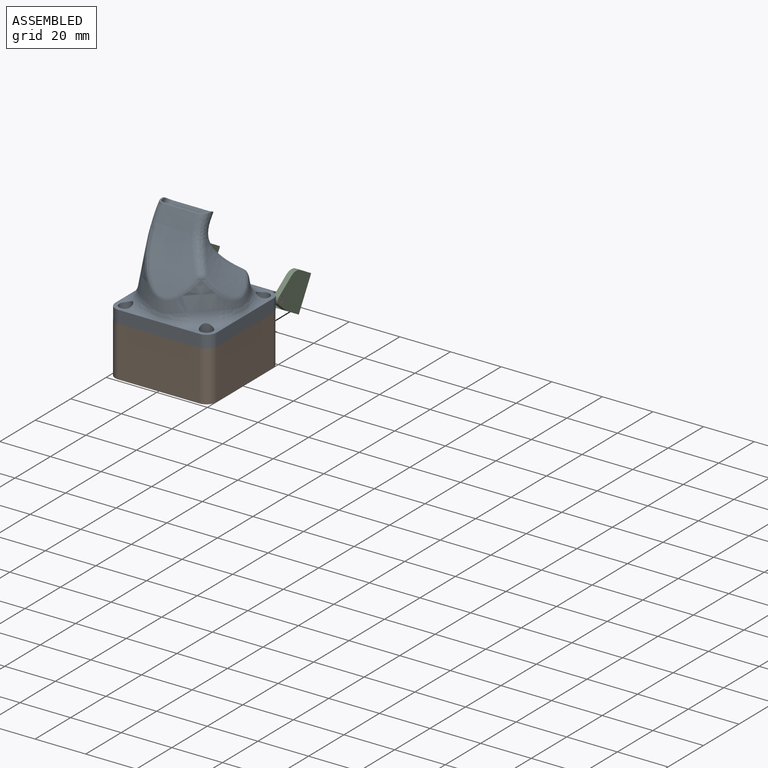
[diagram: assembled view]
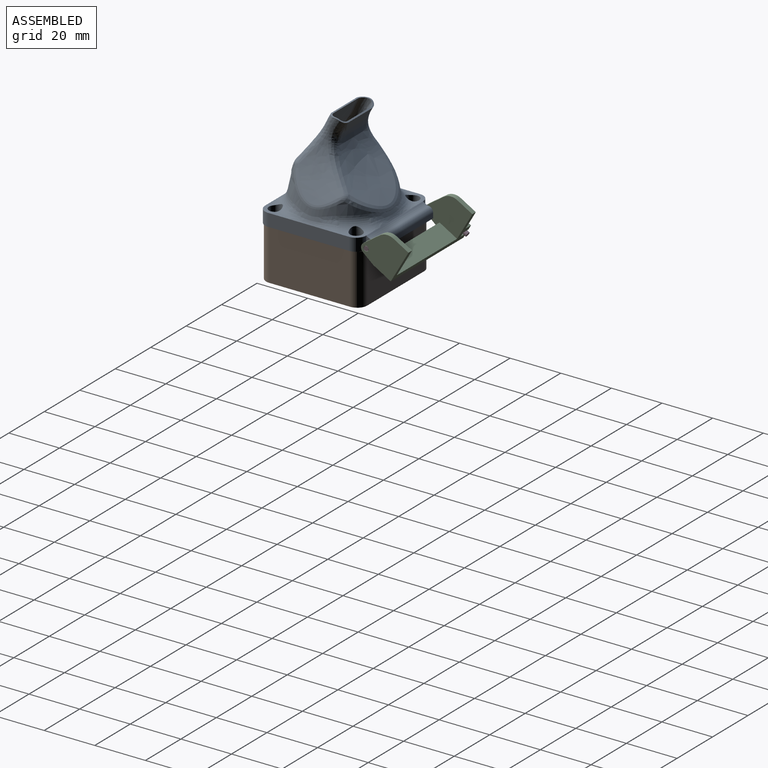
[diagram: assembled view, second angle]
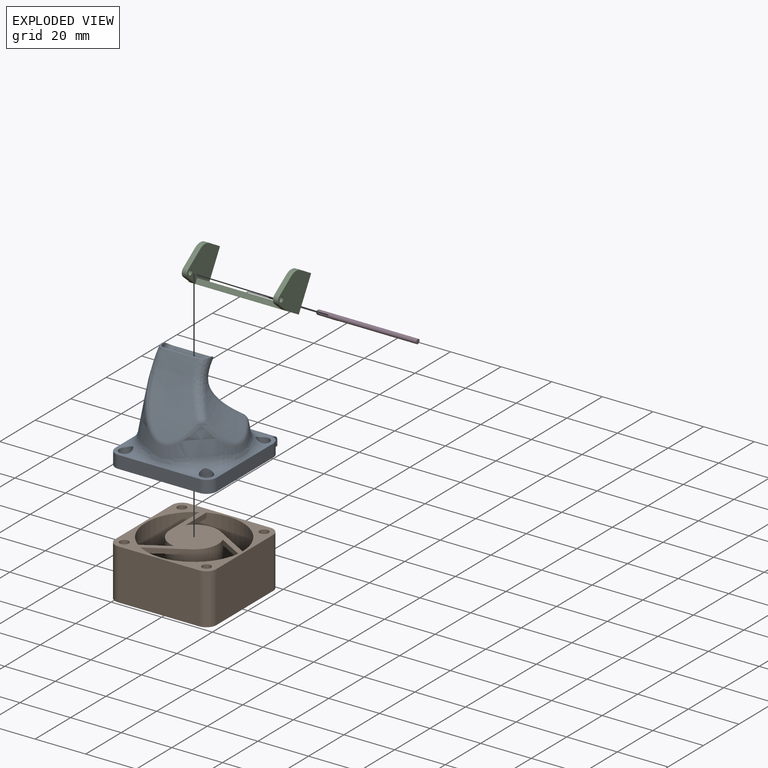
[diagram: exploded view]
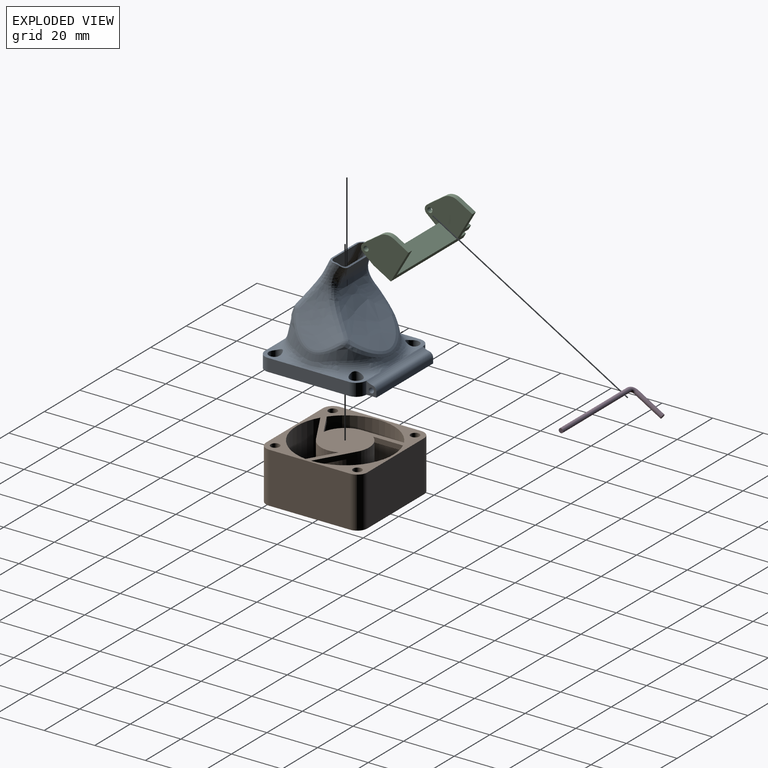
[diagram: exploded view, second angle]
ASSEMBLY  parts=4 mates=3
PART A: 74 faces, bbox 51.1x51.1x41 mm
  f0: plane 8.06x8.06mm, normal (0,0,1), area 16.9mm2, adj f1,f70,f71,f72,f73
  f1: cylinder r=4mm len=5mm, axis (0,0,-1), area 31.4mm2, adj f0,f2,f69,f70
  f2: plane 5x4mm, normal (1,0,0), area 12.9mm2, adj f1,f3,f67,f68,f69,f73
  f3: cylinder r=2mm len=32mm, axis (-1,0,0), area 90.3mm2, adj f2,f4,f67,f73
  f4: plane 5x4mm, normal (-1,0,0), area 12.9mm2, adj f3,f5,f67,f68,f69,f73
  f5: cylinder r=4mm len=5mm, axis (0,0,-1), area 31.4mm2, adj f4,f6,f66,f69
  f6: plane 8.06x8.06mm, normal (0,0,1), area 16.9mm2, adj f5,f7,f8,f66,f73
  f7: cylinder r=2.5mm len=5.59mm, axis (0,0,1), area 81.2mm2, adj f6,f8,f69
  f8: torus R=23.3mm, axis (0,0,1), area 56.4mm2, adj f6,f7,f9,f21,f65
  f9: bspline ~24.77x4.47mm, area 94.2mm2, adj f8,f10,f21,f66
  f10: torus R=23.3mm, axis (0,0,1), area 56.4mm2, adj f9,f11,f19,f20,f21
  f11: bspline ~24.77x4.47mm, area 94.2mm2, adj f10,f12,f17,f21
  f12: plane 32.46x5.46mm, normal (0,-1,0), area 160mm2, adj f11,f13,f14,f16,f20,f69
  f13: cylinder r=4mm len=5mm, axis (0,0,-1), area 31.4mm2, adj f12,f20,f66,f69
  f14: plane 8.06x8.06mm, normal (0,0,1), area 16.9mm2, adj f12,f15,f16,f17,f70
  f15: cylinder r=2.5mm len=6.13mm, axis (0,0,1), area 83.2mm2, adj f14,f17,f69
  f16: cylinder r=4mm len=5mm, axis (0,0,-1), area 31.4mm2, adj f12,f14,f69,f70
  f17: torus R=23.3mm, axis (0,0,1), area 56.4mm2, adj f11,f14,f15,f18,f21
  f18: bspline ~24.77x4.47mm, area 94.2mm2, adj f17,f21,f70,f72
  f19: cylinder r=2.5mm len=5.59mm, axis (0,0,1), area 81.2mm2, adj f10,f20,f69
  f20: plane 8.06x8.06mm, normal (0,0,1), area 16.9mm2, adj f10,f12,f13,f19,f66
  f21: cone r=19.1mm half-angle=10deg, axis (0,0,-1), area 665.4mm2, adj f8,f9,f10,f11,f17,f18,f22,f60
  f22: bspline ~30.97x18.22mm, area 123.5mm2, adj f21,f23,f55,f59
  f23: sphere r=3mm, area 3.3mm2, adj f22,f24,f64
  f24: bspline ~22.6x12.08mm, area 99.5mm2, adj f23,f25,f26,f52,f53,f54,f55
  f25: plane 13.37x0.83mm, normal (0,0.82,-0.57), area 13.3mm2, adj f24,f54,f55,f61
  f26: bspline ~27.83x26.74mm, area 218.2mm2, adj f24,f27,f52,f64
  f27: bspline ~21.01x14.97mm, area 92.5mm2, adj f26,f28,f29,f30,f52,f53
  f28: sphere r=3mm, area 4mm2, adj f27,f63,f64
  f29: bspline ~40x33.09mm, area 429.4mm2, adj f27,f30,f63
  f30: plane 19.28x3.26mm, normal (0,0,1), area 15.1mm2, adj f27,f29,f31,f50,f51,f53,f62,f63
  f31: bspline ~27.51x24.68mm, area 95.5mm2, adj f30,f32,f49,f50,f62
  f32: cone r=18.51mm half-angle=10deg, axis (0,0,-1), area 935.9mm2, adj f31,f33,f44,f45,f47,f48,f62
  f33: bspline ~7.63x5.74mm, area 27.8mm2, adj f32,f34,f38,f43,f54,f62
  f34: sphere r=2.4mm, area 0.2mm2, adj f33,f35,f48
  f35: bspline ~12.97x6mm, area 36.3mm2, adj f34,f36,f37,f38
  f36: offset ~32.74x23.43mm, area 0mm2, adj f35,f48
  f37: sphere r=2.4mm, area 0.6mm2, adj f35,f47,f48
  f38: offset ~33.55x27.1mm, area 617.1mm2, adj f33,f35,f39,f43,f47
  f39: bspline ~23x11.78mm, area 82.1mm2, adj f38,f40,f41,f42,f43,f53,f54
  f40: plane 0.9x0.8mm, normal (-1,0,0), area 0.4mm2, adj f39,f42,f51,f53
  f41: sphere r=2.4mm, area 2.1mm2, adj f39,f44,f47
  f42: offset ~37.87x33.98mm, area 218.6mm2, adj f39,f40,f44,f51
  f43: plane 13.37x0.83mm, normal (0,-0.82,0.57), area 13.3mm2, adj f33,f38,f39,f54
  f44: bspline ~22.46x11.66mm, area 40.2mm2, adj f32,f41,f42,f49
  f45: torus R=6.5mm, axis (0,0,1), area 242.6mm2, adj f32,f46
  f46: cylinder r=18.5mm len=37mm, axis (0,0,-1), area 453.1mm2, adj f45,f69
  f47: bspline ~29.89x17.64mm, area 97.6mm2, adj f32,f37,f38,f41
  f48: bspline ~11.81x5.23mm, area 8.1mm2, adj f32,f34,f36,f37
  f49: sphere r=2.4mm, area 2.6mm2, adj f31,f44,f51
  f50: offset ~41.2x34.29mm, area 434.5mm2, adj f30,f31,f51
  f51: bspline ~20.98x14.46mm, area 75.7mm2, adj f30,f40,f42,f49,f50,f53
  f52: plane 0.9x0.8mm, normal (1,0,0), area 0.4mm2, adj f24,f26,f27,f53
  f53: cylinder r=3mm len=1.72mm, axis (1,0,0), area 1.1mm2, adj f24,f27,f30,f39,f40,f51,f52,f54
  f54: plane 19.11x1.89mm, normal (0,0.57,0.82), area 11.9mm2, adj f24,f25,f33,f39,f43,f53,f61,f62
  f55: bspline ~40x29.36mm, area 602.4mm2, adj f22,f24,f25,f56,f61
  f56: bspline ~12.81x6.38mm, area 43.5mm2, adj f55,f57,f58,f59
  f57: bspline ~31.54x22.23mm, area 0mm2, adj f56,f60
  f58: sphere r=3mm, area 0.3mm2, adj f56,f60,f61
  f59: sphere r=3mm, area 0.9mm2, adj f22,f56,f60
  f60: bspline ~11.81x5.44mm, area 10mm2, adj f21,f57,f58,f59
  f61: bspline ~7.88x6.33mm, area 34mm2, adj f21,f25,f54,f55,f58,f62
  f62: cylinder r=3mm len=1.72mm, axis (1,0,0), area 1.1mm2, adj f21,f30,f31,f32,f33,f54,f61,f63
  f63: bspline ~27.83x25.67mm, area 119mm2, adj f21,f28,f29,f30,f62
  f64: bspline ~23.27x11.86mm, area 50.9mm2, adj f21,f23,f26,f28
  f65: bspline ~24.77x4.47mm, area 94.2mm2, adj f8,f21,f72,f73
  f66: plane 32.46x5.46mm, normal (-1,0,0), area 160mm2, adj f5,f6,f9,f13,f20,f69
  f67: plane 32x2mm, normal (0,1,0), area 64mm2, adj f2,f3,f4,f69
  f68: cylinder r=1mm len=32mm, axis (-1,0,0), area 201.1mm2, adj f2,f4
  f69: plane 44x40mm, normal (0,0,-1), area 560.5mm2, adj f1,f2,f4,f5,f7,f12,f13,f15
  f70: plane 32.46x5.46mm, normal (1,0,0), area 160mm2, adj f0,f1,f14,f16,f18,f69
  f71: cylinder r=2.5mm len=6.13mm, axis (0,0,1), area 83.2mm2, adj f0,f69,f72
  f72: torus R=23.3mm, axis (0,0,1), area 56.4mm2, adj f0,f18,f21,f65,f71
  f73: cylinder r=5mm len=32mm, axis (1,0,0), area 82mm2, adj f0,f2,f3,f4,f6,f65
PART B: 26 faces, bbox 40x40x20 mm
  f0: plane 40x40mm, normal (0,0,-1), area 758.2mm2, adj f4,f5,f6,f8,f9,f10,f11,f12
  f1: plane 40x40mm, normal (0,0,1), area 395.7mm2, adj f12,f13,f14,f15,f16,f17,f18,f19
  f2: plane 14.4x10.54mm, normal (0,0,1), area 26.3mm2, adj f4,f10,f11,f12
  f3: plane 16.26x8.31mm, normal (0,0,1), area 26.3mm2, adj f4,f8,f9,f12
  f4: cylinder r=9.5mm len=19.5mm, axis (0,0,-1), area 1126.3mm2, adj f0,f2,f3,f5,f6,f7,f8,f9
  f5: plane 16.63x2mm, normal (0,-1,0), area 33.3mm2, adj f0,f4,f7,f12
  f6: plane 11.79x2mm, normal (0,1,0), area 23.6mm2, adj f0,f4,f7,f12
  f7: plane 17.62x2mm, normal (0,0,1), area 26.3mm2, adj f4,f5,f6,f12
  f8: plane 10.21x5.89mm, normal (0.87,-0.5,0), area 23.6mm2, adj f0,f3,f4,f12
  f9: plane 14.4x8.31mm, normal (-0.87,0.5,0), area 33.3mm2, adj f0,f3,f4,f12
  f10: plane 14.4x8.31mm, normal (0.87,0.5,0), area 33.3mm2, adj f0,f2,f4,f12
  f11: plane 10.21x5.89mm, normal (-0.87,-0.5,0), area 23.6mm2, adj f0,f2,f4,f12
  f12: cylinder r=19.15mm len=38.3mm, axis (0,0,-1), area 2393.1mm2, adj f0,f1,f2,f3,f5,f6,f7,f8
  f13: plane 32x20mm, normal (0,1,0), area 640mm2, adj f0,f1,f17,f20
  f14: plane 32x20mm, normal (-1,0,0), area 640mm2, adj f0,f1,f17,f18
  f15: plane 32x20mm, normal (0,-1,0), area 640mm2, adj f0,f1,f18,f19
  f16: plane 32x20mm, normal (1,0,0), area 640mm2, adj f0,f1,f19,f20
  f17: cylinder r=4mm len=20mm, axis (0,0,1), area 125.7mm2, adj f0,f1,f13,f14
  f18: cylinder r=4mm len=20mm, axis (0,0,-1), area 125.7mm2, adj f0,f1,f14,f15
  f19: cylinder r=4mm len=20mm, axis (0,0,1), area 125.7mm2, adj f0,f1,f15,f16
  f20: cylinder r=4mm len=20mm, axis (0,0,-1), area 125.7mm2, adj f0,f1,f13,f16
  f21: plane 19x19mm, normal (0,0,1), area 283.5mm2, adj f4
  f22: cylinder r=1.75mm len=20mm, axis (0,0,-1), area 219.9mm2, adj f0,f1
  f23: cylinder r=1.75mm len=20mm, axis (0,0,-1), area 219.9mm2, adj f0,f1
  f24: cylinder r=1.75mm len=20mm, axis (0,0,-1), area 219.9mm2, adj f0,f1
  f25: cylinder r=1.75mm len=20mm, axis (0,0,-1), area 219.9mm2, adj f0,f1
PART C: 27 faces, bbox 41x15x14 mm
  f0: plane 15x14mm, normal (-1,0,0), area 157.5mm2, adj f1,f2,f5,f6,f7,f8,f9,f10
  f1: plane 41x14mm, normal (0,-1,0), area 136mm2, adj f0,f2,f3,f4,f5,f12,f13,f14
  f2: plane 34x8mm, normal (0,0,1), area 272mm2, adj f0,f1,f7,f12
  f3: plane 41x8mm, normal (0,0,-1), area 322mm2, adj f1,f4,f7,f8,f13,f16,f24,f25
  f4: plane 15x14mm, normal (1,0,0), area 145.5mm2, adj f1,f3,f5,f6,f8,f9,f10,f11
  f5: plane 6.84x2mm, normal (0,0,1), area 13.7mm2, adj f0,f1,f4,f11
  f6: cylinder r=1mm len=2mm, axis (1,0,0), area 12.6mm2, adj f0,f4
  f7: plane 34x2mm, normal (0,1,0), area 68mm2, adj f0,f2,f3,f12
  f8: plane 5.38x2mm, normal (0,0.19,-0.98), area 11mm2, adj f0,f3,f4,f10
  f9: plane 7.29x3.45mm, normal (0,0.9,0.43), area 16.1mm2, adj f0,f4,f10,f11
  f10: cylinder r=2mm len=2.82mm, axis (1,0,0), area 7.3mm2, adj f0,f4,f8,f9
  f11: cylinder r=5mm len=4.52mm, axis (1,0,0), area 11.3mm2, adj f0,f4,f5,f9
  f12: plane 15x14mm, normal (1,0,0), area 157.5mm2, adj f1,f2,f7,f14,f15,f16,f17,f18
  f13: plane 15x14mm, normal (-1,0,0), area 173.5mm2, adj f1,f3,f14,f15,f16,f17,f18,f19
  f14: plane 6.84x2mm, normal (0,0,1), area 13.7mm2, adj f1,f12,f13,f19
  f15: cylinder r=1mm len=2mm, axis (-1,0,0), area 12.6mm2, adj f12,f13
  f16: plane 5.38x2mm, normal (0,0.19,-0.98), area 11mm2, adj f3,f12,f13,f18
  f17: plane 7.29x3.45mm, normal (0,0.9,0.43), area 16.1mm2, adj f12,f13,f18,f19
  f18: cylinder r=2mm len=2.82mm, axis (-1,0,0), area 7.3mm2, adj f12,f13,f16,f17
  f19: cylinder r=5mm len=4.52mm, axis (-1,0,0), area 11.3mm2, adj f12,f13,f14,f17
  f20: plane 7x3mm, normal (0,0,1), area 18mm2, adj f1,f4,f22,f26
  f21: plane 7x3mm, normal (0,0,-1), area 18mm2, adj f1,f4,f22,f26
  f22: plane 3.13x2mm, normal (1,0,0), area 6.3mm2, adj f1,f20,f21,f26
  f23: plane 7x3mm, normal (0,0,1), area 18mm2, adj f1,f4,f24,f25
  f24: plane 3.13x2mm, normal (1,0,0), area 6.3mm2, adj f1,f3,f23,f25
  f25: cylinder r=4mm len=3.87mm, axis (0,0,1), area 10.5mm2, adj f3,f4,f23,f24
  f26: cylinder r=4mm len=3.87mm, axis (0,0,1), area 10.5mm2, adj f4,f20,f21,f22
PART D: 5 faces, bbox 15.1x41.1x1.8 mm
  f0: cylinder r=0.9mm len=38mm, axis (0,1,0), area 214.9mm2, adj f1,f3
  f1: plane 1.8x1.8mm, normal (0,-1,0), area 2.5mm2, adj f0
  f2: plane 1.8x1.8mm, normal (1,0,0), area 2.5mm2, adj f4
  f3: torus R=2mm, axis (0,0,-1), area 17.8mm2, adj f0,f4
  f4: cylinder r=0.9mm len=12mm, axis (1,0,0), area 67.9mm2, adj f2,f3
PLACE A t=(0,-1.56,0.76)mm
PLACE B rot(axis=(0.71,0.71,0),180deg) t=(-0.25,-1.31,0.76)mm
PLACE C rot(axis=(0,-0.26,-0.97),180deg) t=(0,30.19,-6.34)mm
PLACE D rot(axis=(-0.25,0.25,0.94),93.8deg) t=(-19,20.44,2.76)mm
MATE fastened B.f24 <-> A.f15  axis (0,0,1) through (16,-17.56,0.76)mm
MATE parallel D.f4 <-> C.f1  axis (0,0.87,-0.5) through (-21,32.56,-4.24)mm
MATE revolute D.f0 <-> C.f6  axis (1,0,0) through (19,20.44,2.76)mm
